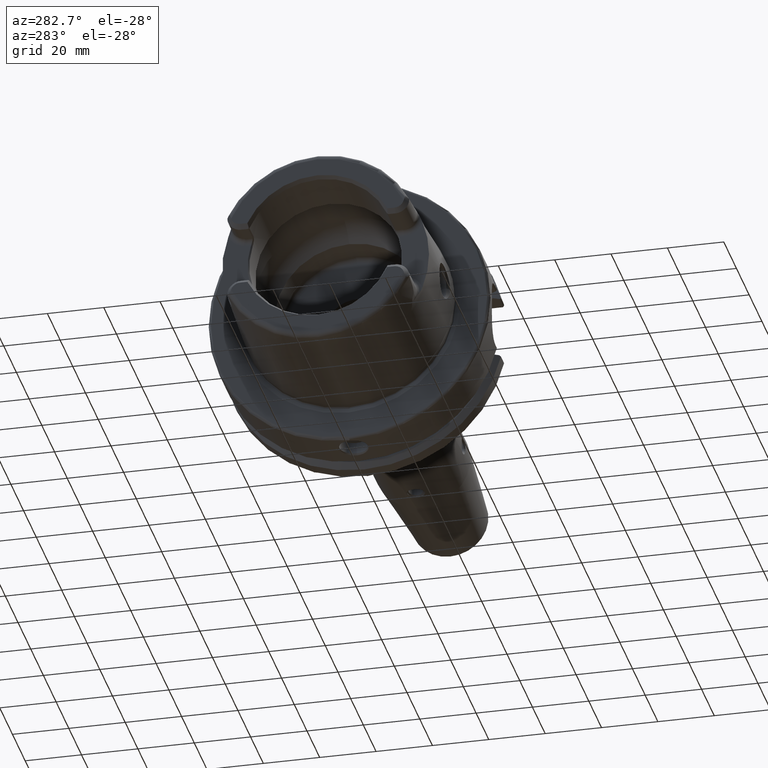
[diagram: clean part render]
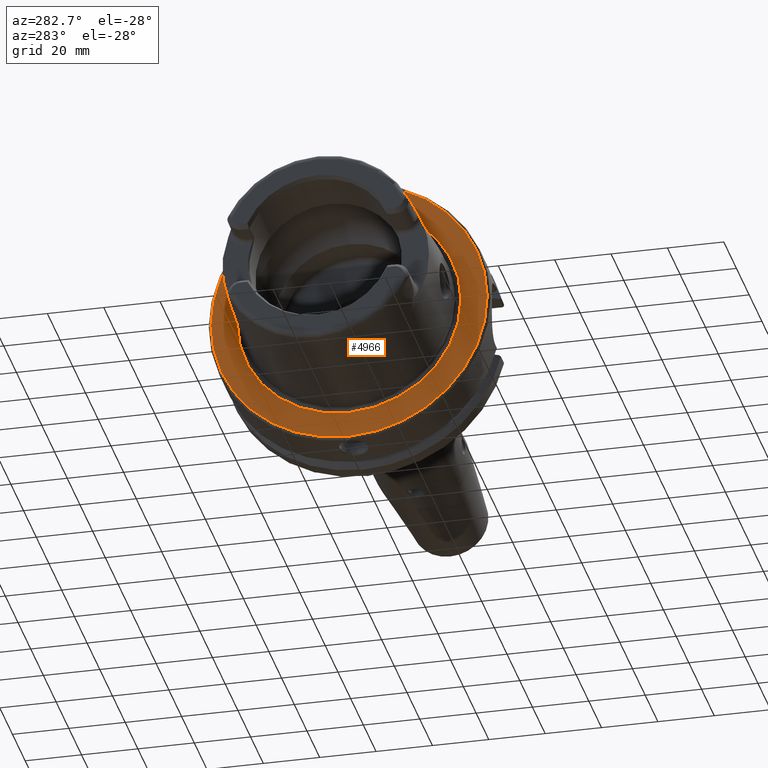
[diagram: same view with one face highlighted and labeled with its STEP entity id]
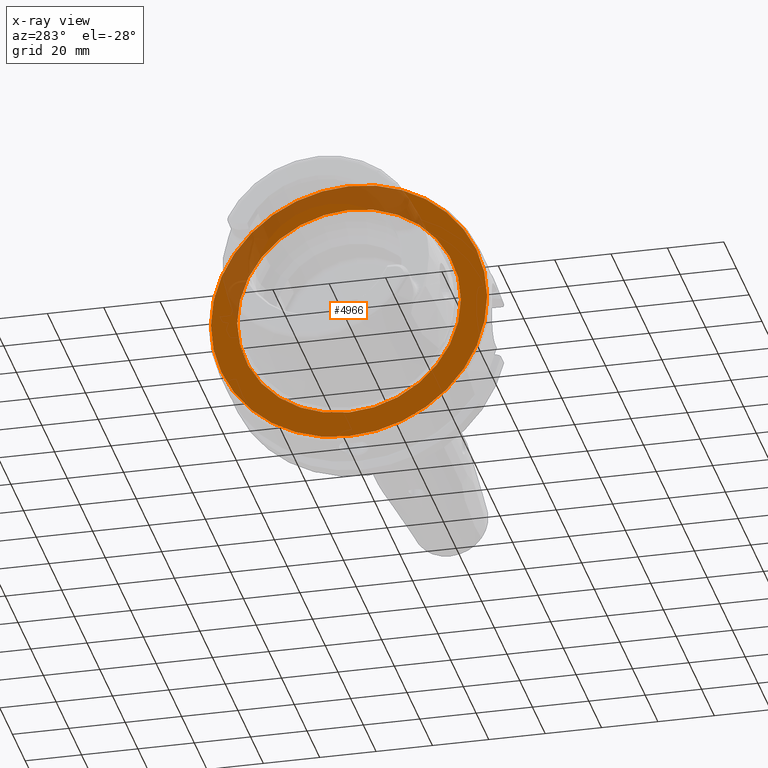
[diagram: x-ray of the same camera — body ghosted, the highlighted face saturated]
A machine part, auxiliary view. The second image highlights one B-rep face of the part: STEP entity #4966.
The next image is the same camera in x-ray: the body ghosted, the highlighted face saturated — about 25% of this face is hidden behind the body in this view.
In plain terms, the highlighted planar face has unit normal (1, 0, 0).
Its self-contained STEP definition (entity closure, byte-faithful):
#1257=CARTESIAN_POINT('',(0.E0,0.E0,0.E0));
#1258=DIRECTION('',(1.E0,0.E0,0.E0));
#1259=DIRECTION('',(0.E0,0.E0,1.E0));
#1260=AXIS2_PLACEMENT_3D('',#1257,#1258,#1259);
#1262=CARTESIAN_POINT('',(0.E0,0.E0,0.E0));
#1263=DIRECTION('',(1.E0,0.E0,0.E0));
#1264=DIRECTION('',(0.E0,-9.795626133661E-1,2.011394702573E-1));
#1265=AXIS2_PLACEMENT_3D('',#1262,#1263,#1264);
#1267=CARTESIAN_POINT('',(0.E0,0.E0,0.E0));
#1268=DIRECTION('',(1.E0,0.E0,0.E0));
#1269=DIRECTION('',(0.E0,0.E0,-1.E0));
#1270=AXIS2_PLACEMENT_3D('',#1267,#1268,#1269);
#1272=CARTESIAN_POINT('',(0.E0,0.E0,0.E0));
#1273=DIRECTION('',(1.E0,0.E0,0.E0));
#1274=DIRECTION('',(0.E0,7.117313516455E-3,-9.999746716034E-1));
#1275=AXIS2_PLACEMENT_3D('',#1272,#1273,#1274);
#1277=CARTESIAN_POINT('',(-3.064215547965E-13,0.E0,0.E0));
#1278=DIRECTION('',(-1.E0,0.E0,0.E0));
#1279=DIRECTION('',(0.E0,0.E0,1.E0));
#1280=AXIS2_PLACEMENT_3D('',#1277,#1278,#1279);
#1282=CARTESIAN_POINT('',(-3.064215547965E-13,0.E0,0.E0));
#1283=DIRECTION('',(-1.E0,0.E0,0.E0));
#1284=DIRECTION('',(0.E0,0.E0,-1.E0));
#1285=AXIS2_PLACEMENT_3D('',#1282,#1283,#1284);
#3209=CARTESIAN_POINT('',(-2.030967986381E-13,-4.958605765358E-13,3.96822E1));
#3210=VERTEX_POINT('',#3209);
#3211=CARTESIAN_POINT('',(-3.064215547965E-13,0.E0,-3.96822E1));
#3212=VERTEX_POINT('',#3211);
#3217=CARTESIAN_POINT('',(0.E0,-4.799856805494E1,9.855834042608E0));
#3218=CARTESIAN_POINT('',(0.E0,9.947598300641E-14,-4.9E1));
#3219=VERTEX_POINT('',#3217);
#3220=VERTEX_POINT('',#3218);
#3221=CARTESIAN_POINT('',(0.E0,4.318551933581E-14,4.9E1));
#3222=VERTEX_POINT('',#3221);
#3223=CARTESIAN_POINT('',(0.E0,3.487483623063E-1,-4.899875890857E1));
#3224=VERTEX_POINT('',#3223);
#4947=CARTESIAN_POINT('',(0.E0,0.E0,0.E0));
#4948=DIRECTION('',(1.E0,0.E0,0.E0));
#4949=DIRECTION('',(0.E0,0.E0,1.E0));
#4950=AXIS2_PLACEMENT_3D('',#4947,#4948,#4949);
#4951=PLANE('',#4950);
#4953=ORIENTED_EDGE('',*,*,#4952,.T.);
#4955=ORIENTED_EDGE('',*,*,#4954,.T.);
#4957=ORIENTED_EDGE('',*,*,#4956,.T.);
#4959=ORIENTED_EDGE('',*,*,#4958,.T.);
#4960=EDGE_LOOP('',(#4953,#4955,#4957,#4959));
#4961=FACE_OUTER_BOUND('',#4960,.F.);
#4962=ORIENTED_EDGE('',*,*,#4899,.T.);
#4963=ORIENTED_EDGE('',*,*,#4882,.T.);
#4964=EDGE_LOOP('',(#4962,#4963));
#4965=FACE_BOUND('',#4964,.F.);
#4966=ADVANCED_FACE('',(#4961,#4965),#4951,.F.);
#1261=CIRCLE('',#1260,4.9E1);
#1266=CIRCLE('',#1265,4.9E1);
#1271=CIRCLE('',#1270,4.9E1);
#1276=CIRCLE('',#1275,4.9E1);
#1281=CIRCLE('',#1280,3.96822E1);
#1286=CIRCLE('',#1285,3.96822E1);
#4882=EDGE_CURVE('',#3212,#3210,#1286,.T.);
#4899=EDGE_CURVE('',#3210,#3212,#1281,.T.);
#4952=EDGE_CURVE('',#3222,#3219,#1261,.T.);
#4954=EDGE_CURVE('',#3219,#3220,#1266,.T.);
#4956=EDGE_CURVE('',#3220,#3224,#1271,.T.);
#4958=EDGE_CURVE('',#3224,#3222,#1276,.T.);